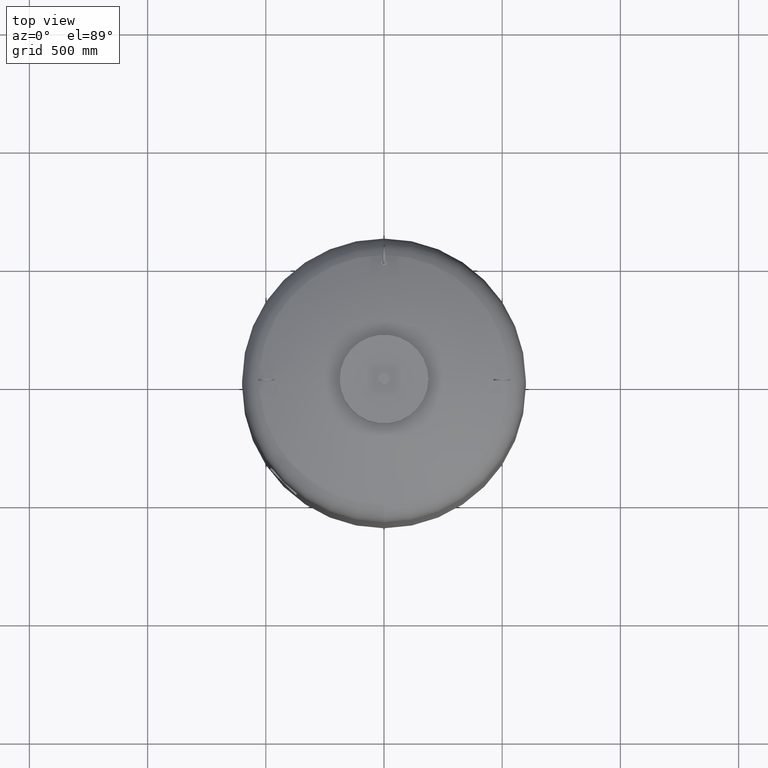
[diagram: clean part render]
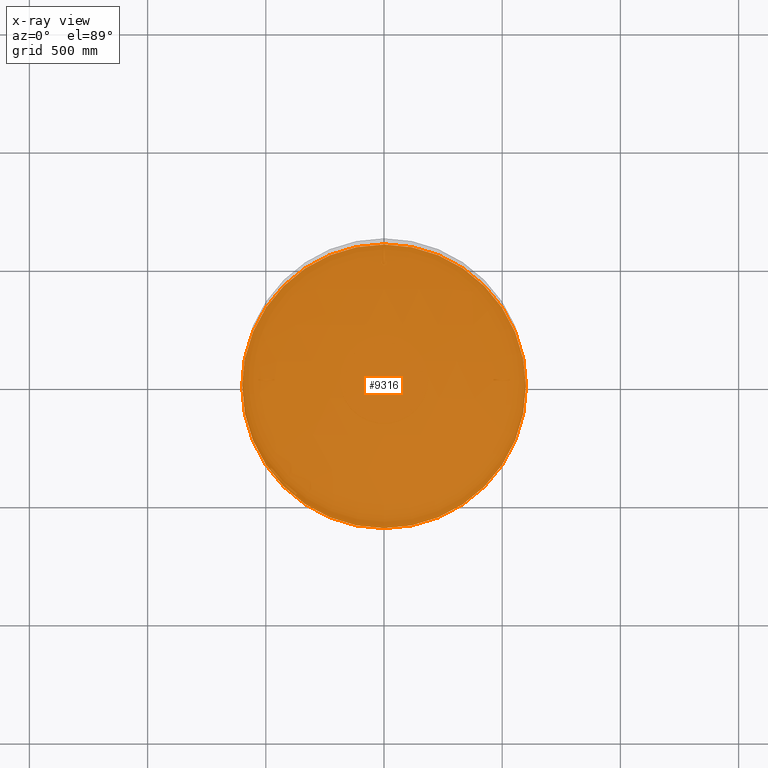
[diagram: x-ray — body ghosted, one internal face saturated and labeled with its STEP entity id]
A machine part, top view, then the same camera in x-ray: the body is ghosted and one INTERNAL B-rep face — a face not visible from any outside direction — is saturated and labeled: STEP entity #9316.
In plain terms, the highlighted planar face has unit normal (0, 0, 1).
Its self-contained STEP definition (entity closure, byte-faithful):
#9154=CARTESIAN_POINT('',(-600.000000000000110,-4.684274E-014,715.0));
#9155=VERTEX_POINT('',#9154);
#9164=CARTESIAN_POINT('',(599.999999999999890,2.663364E-014,715.000000000000110));
#9165=VERTEX_POINT('',#9164);
#9166=CARTESIAN_POINT('',(-3.836254E-014,-4.684274E-014,715.0));
#9167=DIRECTION('',(0.0,0.0,1.0));
#9168=DIRECTION('',(-1.0,0.0,0.0));
#9169=AXIS2_PLACEMENT_3D('',#9166,#9167,#9168);
#9170=CIRCLE('',#9169,600.0);
#9171=EDGE_CURVE('',#9165,#9155,#9170,.T.);
#9297=CARTESIAN_POINT('',(-3.836254E-014,-4.684274E-014,715.0));
#9298=DIRECTION('',(0.0,0.0,1.0));
#9299=DIRECTION('',(-1.0,0.0,0.0));
#9300=AXIS2_PLACEMENT_3D('',#9297,#9298,#9299);
#9301=CIRCLE('',#9300,600.0);
#9302=EDGE_CURVE('',#9155,#9165,#9301,.T.);
#9307=CARTESIAN_POINT('',(-300.000000000000060,-4.684274E-014,715.0));
#9308=DIRECTION('',(0.0,0.0,1.0));
#9309=DIRECTION('',(0.0,-1.0,0.0));
#9310=AXIS2_PLACEMENT_3D('',#9307,#9308,#9309);
#9311=PLANE('',#9310);
#9312=ORIENTED_EDGE('',*,*,#9302,.T.);
#9313=ORIENTED_EDGE('',*,*,#9171,.T.);
#9314=EDGE_LOOP('',(#9312,#9313));
#9315=FACE_OUTER_BOUND('',#9314,.T.);
#9316=ADVANCED_FACE('',(#9315),#9311,.T.);